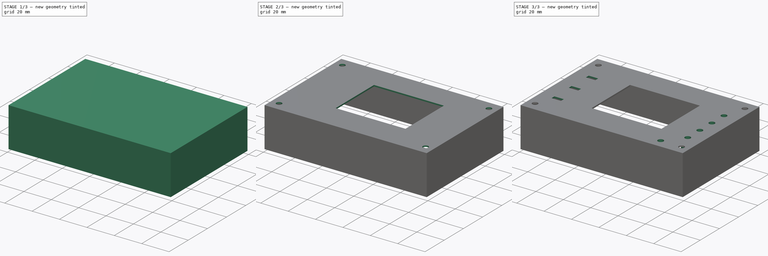
[diagram: build sequence overview — one tinted view per stage of 3, left to right]
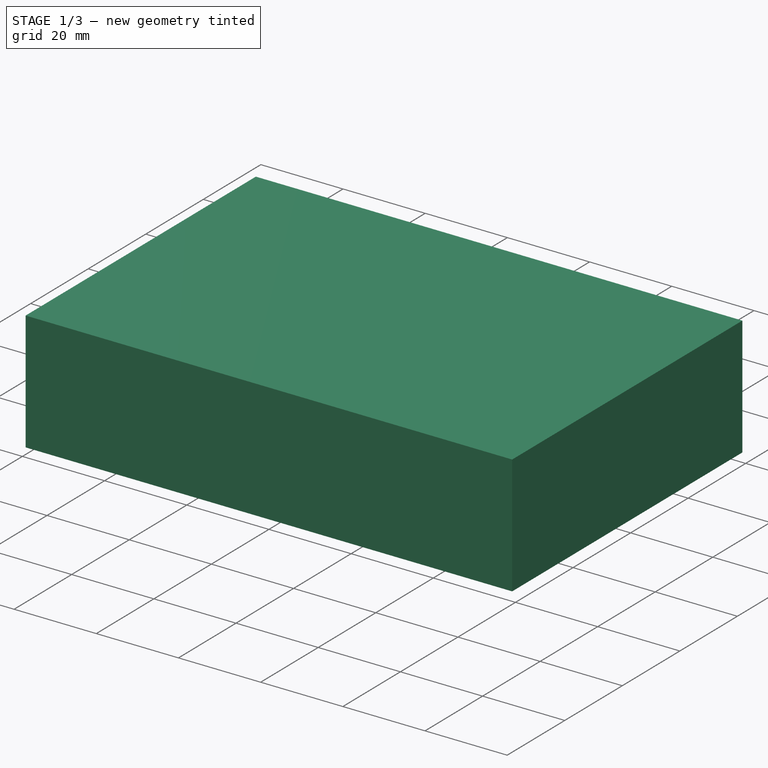
[diagram: stage 1 of 3 — iso view after this stage's code; geometry added in this stage tinted green]
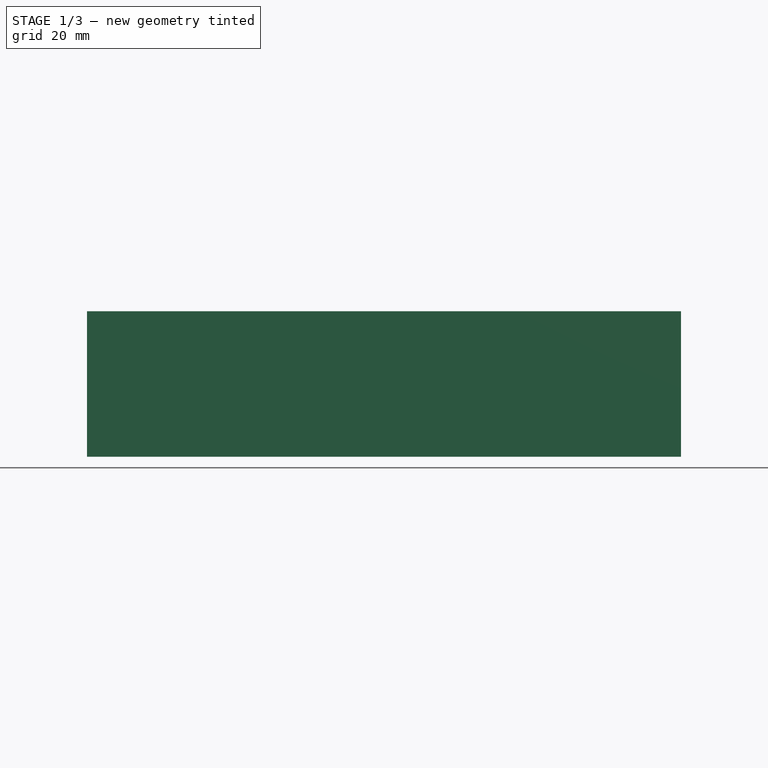
[diagram: stage 1 of 3 — front view after this stage's code; geometry added in this stage tinted green]
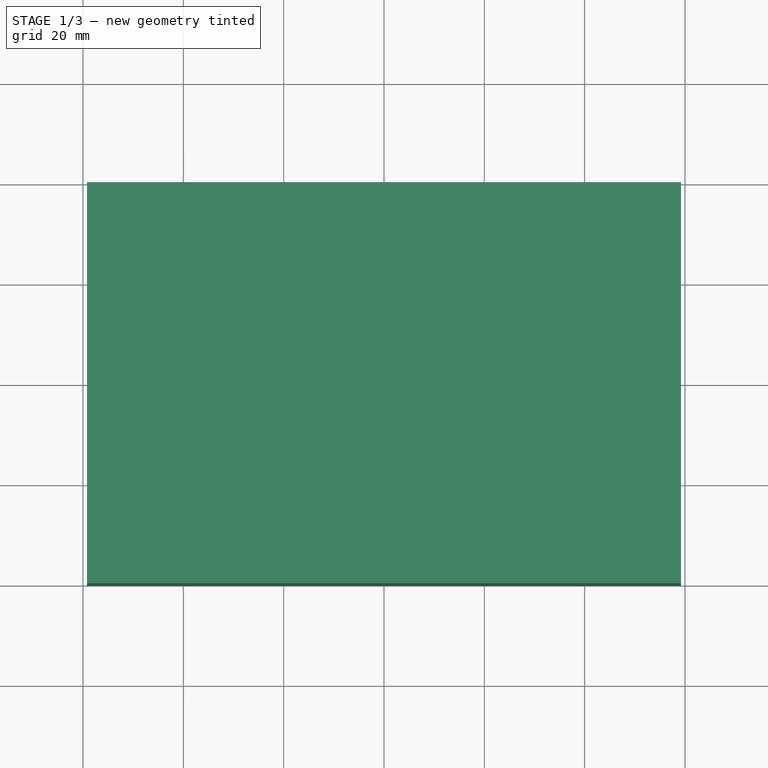
[diagram: stage 1 of 3 — top view after this stage's code; geometry added in this stage tinted green]
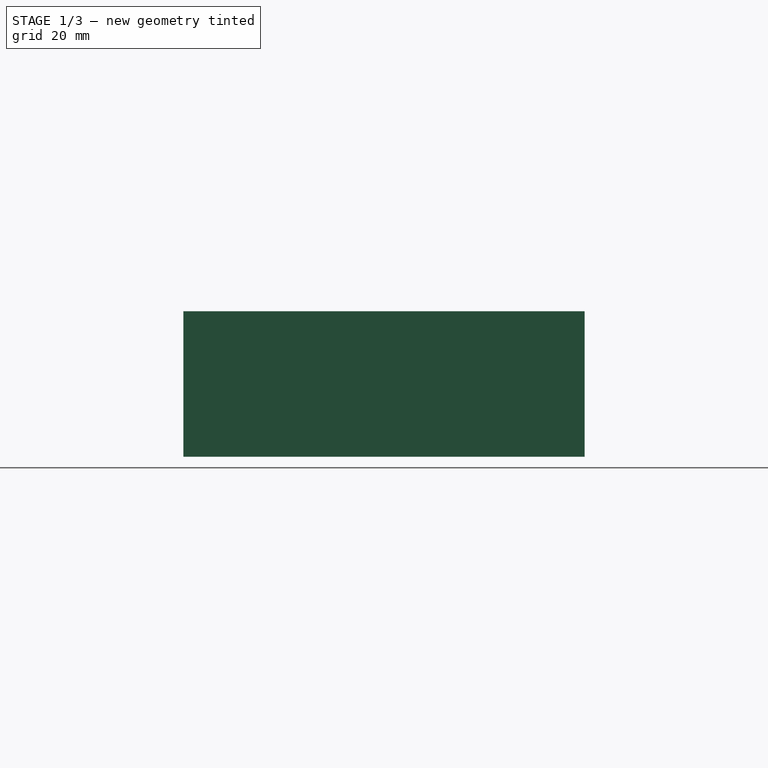
[diagram: stage 1 of 3 — right view after this stage's code; geometry added in this stage tinted green]
FCSTD DOCUMENT  (FreeCAD 0.20R29177 (Git))
Label: capotDSO138
License: All rights reserved
LicenseURL: http://en.wikipedia.org/wiki/All_rights_reserved
objects: Sketcher::SketchObject×5, PartDesign::Pocket×3, PartDesign::Pad×2, Spreadsheet::Sheet×1, PartDesign::Thickness×1, PartDesign::Plane×1, PartDesign::Body×1, App::Part×1
note: 19 computed .brp shape members not serialized (recipe doc carries the construction recipe); baked Part::Feature solids carry a one-line shape summary decoded from their .brp

FEATURE [Spreadsheet::Sheet] Spreadsheet  label="capotDSO138Sp"
  cells = A2=long; B2(long)==116.8 + jeu + paroisEp; A3=larg; B3(larg)=80; A4=haut; B4(haut)=29; A5=paroisEp; B5(paroisEp)=1; A6=jeu; B6(jeu)=0.6; A7=trousEcartlong; B7(trousEcartlong)=107; A8=trousEcartLarg; B8(trousEcartLarg)=66; A9=trousDiam; B9(trousDiam)=4; A10=ecranLong; B10(ecranLong)=51; A11=ecranLarg; B11(ecranLarg)=40; A12=ecranPosX; B12(ecranPosX)=31.5; C12=refVis bas gauche; A13=ecranPosY; B13(ecranPosY)=14; A15=glissieresPosX; B15(glissieresPosX)=7.2; A16=glissiere1posY; B16(glissiere1posY)=13.34; A17=glissiereEcart; B17(glissiereEcart)=17.9; A18=glissiere2posY; B18(glissiere2posY)==glissiere1posY + glissiereEcart; A19=glissiere3posY; B19(glissiere3posY)==glissiere1posY + glissiereEcart * 2; A20=glissieresLong; B20(glissieresLong)=12.8; A21=glissieresLarg; B21(glissieresLarg)=7; A22=glissieresLumLong; B22(glissieresLumLong)==6.3 + jeu; A23=glissieresLumLarg; B23(glissieresLumLarg)==2.35 + jeu; A25=bpsPosX; B25(bpsPosX)=102.5; A26=bp1PosY; B26(bp1PosY)=12.8; A27=bpsEcart; B27(bpsEcart)=12.6; A28=bp2PosY; B28(bp2PosY)==bp1PosY + bpsEcart; A29=bp3PosY; B29(bp3PosY)==bp1PosY + bpsEcart * 2; A30=bp4PosY; B30(bp4PosY)==bp1PosY + bpsEcart * 3; A31=bpTrouDiam; B31(bpTrouDiam)==3.5 + jeu; A32=bpResetPosX; B32(bpResetPosX)=91.7; A33=bpResetPosY; B33(bpResetPosY)=0; A34=bpTuyauHaut; B34(bpTuyauHaut)=12
FEATURE [Sketcher::SketchObject] Sketch
  FullyConstrained = true
  MapMode = 5
  Support = -> [XY_Plane001]
  expr: Constraints[10] = <<capotDSO138Sp>>.long
  expr: Constraints[11] = <<capotDSO138Sp>>.larg
  sketch-geometry (5):
    g0: LineSegment StartX=-59.2 StartY=40 StartZ=0 EndX=-59.2 EndY=-40 EndZ=0
    g1: LineSegment StartX=-59.2 StartY=-40 StartZ=0 EndX=59.2 EndY=-40 EndZ=0
    g2: LineSegment StartX=59.2 StartY=-40 StartZ=0 EndX=59.2 EndY=40 EndZ=0
    g3: LineSegment StartX=59.2 StartY=40 StartZ=0 EndX=-59.2 EndY=40 EndZ=0
    g4: GeomPoint X=0 Y=0 Z=0
  constraints (12):
    c: Coincident(g0,g1)
    c: Coincident(g1,g2)
    c: Coincident(g2,g3)
    c: Coincident(g3,g0)
    c: Horizontal(g1)
    c: Horizontal(g3)
    c: Vertical(g0)
    c: Vertical(g2)
    c: Symmetric(g1,g0,g4)
    c: Coincident(g4,g-1)
    c: DistanceX(g0,g2) = 118.4
    c: DistanceY(g1,g2) = 80
FEATURE [PartDesign::Pad] Pad
  Direction = (0,0,1)
  Length = 29
  Length2 = 10
  Profile = -> Sketch
  ReferenceAxis = -> Sketch [N_Axis]
  Type = 0
  expr: Length = <<capotDSO138Sp>>.haut
FEATURE [PartDesign::Thickness] Thickness
  Base = -> Pad [Face5]
  BaseFeature = -> Pad
  Intersection = false
  Join = 0
  Mode = 0
  Reversed = true
  SupportTransform = false
  Value = 1
  expr: Value = <<capotDSO138Sp>>.paroisEp
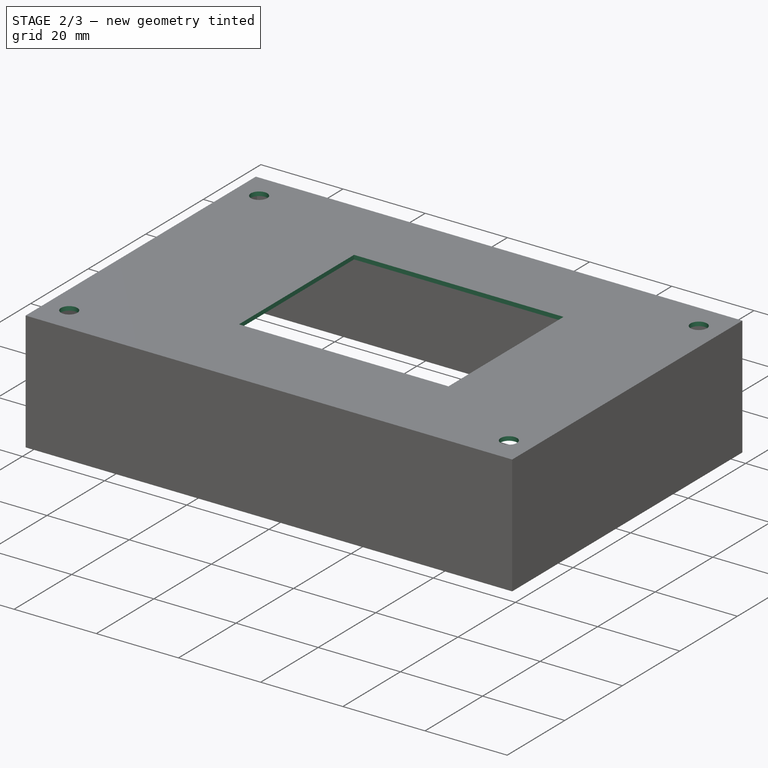
[diagram: stage 2 of 3 — iso view after this stage's code; geometry added in this stage tinted green]
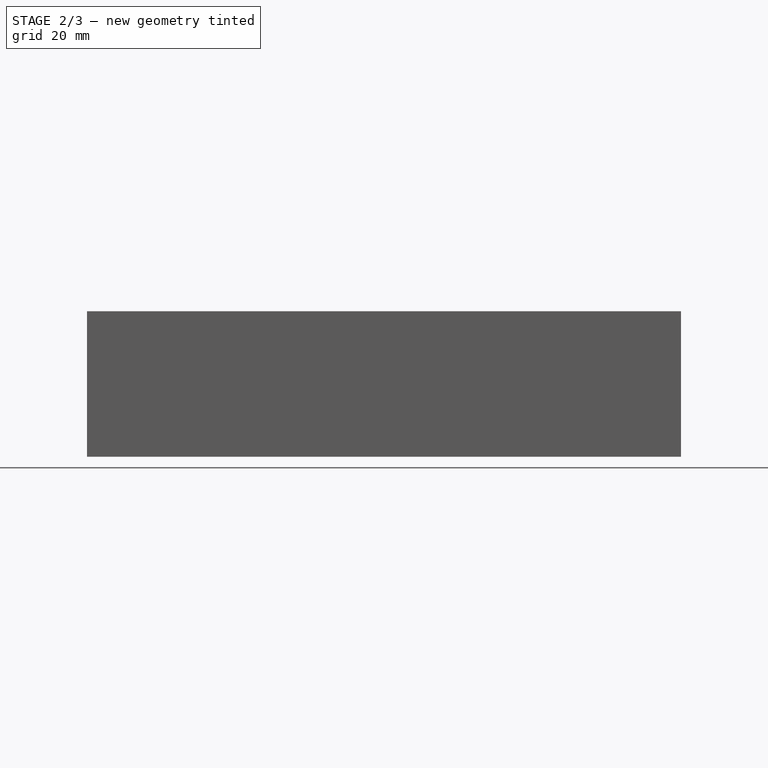
[diagram: stage 2 of 3 — front view after this stage's code; geometry added in this stage tinted green]
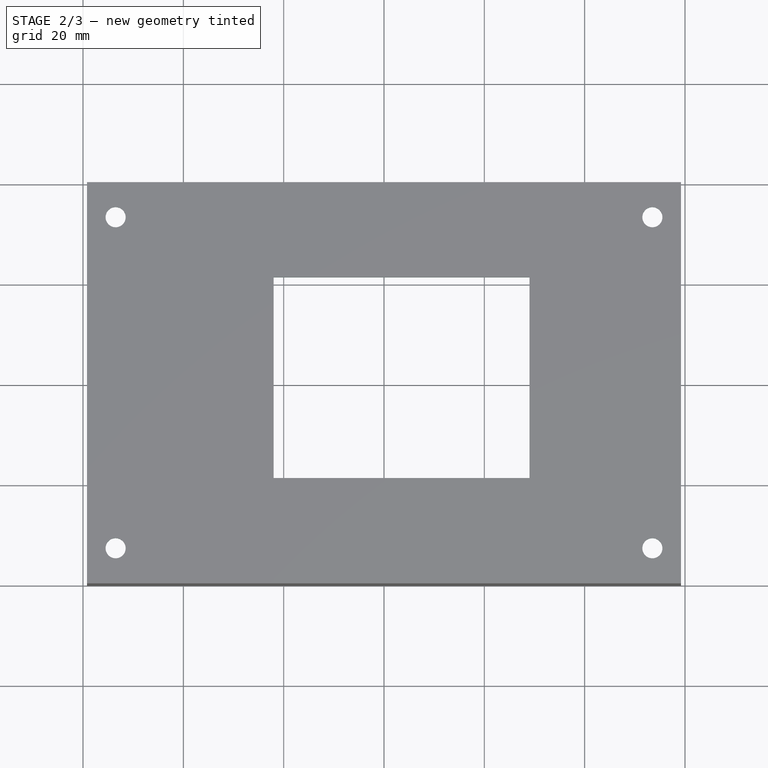
[diagram: stage 2 of 3 — top view after this stage's code; geometry added in this stage tinted green]
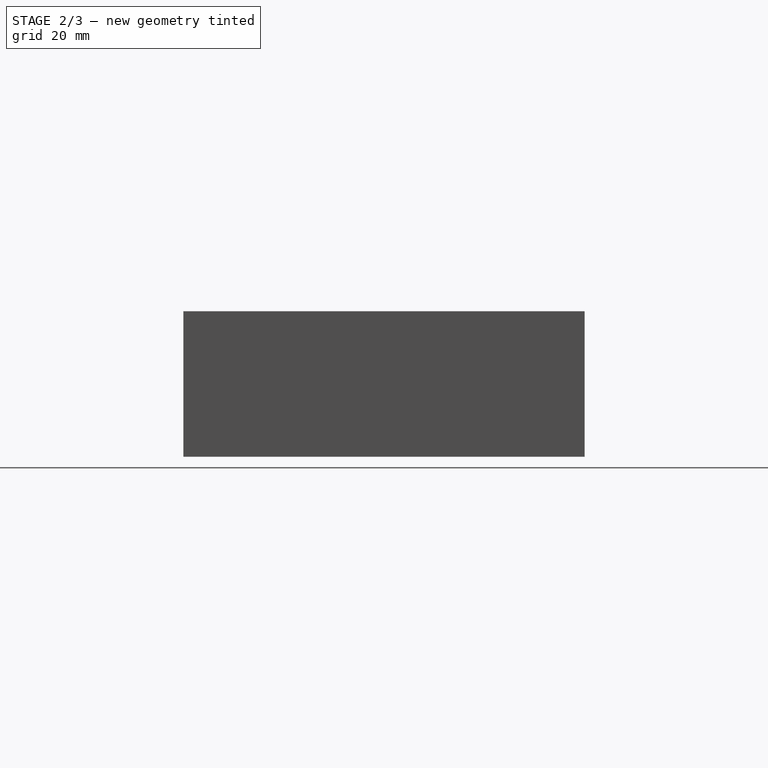
[diagram: stage 2 of 3 — right view after this stage's code; geometry added in this stage tinted green]
FEATURE [Sketcher::SketchObject] Sketch001
  FullyConstrained = true
  MapMode = 5
  Support = -> [XY_Plane001]
  expr: Constraints[10] = <<capotDSO138Sp>>.trousEcartlong
  expr: Constraints[11] = <<capotDSO138Sp>>.trousEcartLarg
  expr: Constraints[19] = <<capotDSO138Sp>>.trousDiam
  sketch-geometry (9):
    g0: LineSegment StartX=-53.5 StartY=33 StartZ=0 EndX=-53.5 EndY=-33 EndZ=0
    g1: LineSegment StartX=-53.5 StartY=-33 StartZ=0 EndX=53.5 EndY=-33 EndZ=0
    g2: LineSegment StartX=53.5 StartY=-33 StartZ=0 EndX=53.5 EndY=33 EndZ=0
    g3: LineSegment StartX=53.5 StartY=33 StartZ=0 EndX=-53.5 EndY=33 EndZ=0
    g4: GeomPoint X=0 Y=0 Z=0
    g5: Circle CenterX=53.5 CenterY=33 CenterZ=0 NormalX=0 NormalY=0 NormalZ=1 AngleXU=0 Radius=2
    g6: Circle CenterX=53.5 CenterY=-33 CenterZ=0 NormalX=0 NormalY=0 NormalZ=1 AngleXU=0 Radius=2
    g7: Circle CenterX=-53.5 CenterY=-33 CenterZ=0 NormalX=0 NormalY=0 NormalZ=1 AngleXU=0 Radius=2
    g8: Circle CenterX=-53.5 CenterY=33 CenterZ=0 NormalX=0 NormalY=0 NormalZ=1 AngleXU=0 Radius=2
  constraints (20):
    c: Coincident(g0,g1)
    c: Coincident(g1,g2)
    c: Coincident(g2,g3)
    c: Coincident(g3,g0)
    c: Horizontal(g1)
    c: Horizontal(g3)
    c: Vertical(g0)
    c: Vertical(g2)
    c: Symmetric(g1,g0,g4)
    c: Coincident(g4,g-1)
    c: DistanceX(g0,g2) = 107
    c: DistanceY(g1,g2) = 66
    c: Coincident(g5,g2)
    c: Coincident(g6,g1)
    c: Coincident(g7,g0)
    c: Coincident(g8,g0)
    c: Equal(g8,g5)
    c: Equal(g5,g6)
    c: Equal(g6,g7)
    c: Diameter(g5) = 4
FEATURE [PartDesign::Pocket] Pocket  label="trousFixation"
  BaseFeature = -> Thickness
  Direction = (0,0,-1)
  Length = 5
  Length2 = 5
  Profile = -> Sketch001
  ReferenceAxis = -> Sketch001 [N_Axis]
  Reversed = true
  Type = 1
FEATURE [Sketcher::SketchObject] Sketch002
  FullyConstrained = true
  MapMode = 5
  Support = -> [XY_Plane001]
  expr: Constraints[18] = <<capotDSO138Sp>>.trousEcartlong
  expr: Constraints[19] = <<capotDSO138Sp>>.trousEcartLarg
  expr: Constraints[20] = <<capotDSO138Sp>>.ecranPosX
  expr: Constraints[21] = <<capotDSO138Sp>>.ecranPosY
  expr: Constraints[22] = <<capotDSO138Sp>>.ecranLong
  expr: Constraints[23] = <<capotDSO138Sp>>.ecranLarg
  sketch-geometry (9):
    g0: LineSegment StartX=-53.5 StartY=33 StartZ=0 EndX=-53.5 EndY=-33 EndZ=0
    g1: LineSegment StartX=-53.5 StartY=-33 StartZ=0 EndX=53.5 EndY=-33 EndZ=0
    g2: LineSegment StartX=53.5 StartY=-33 StartZ=0 EndX=53.5 EndY=33 EndZ=0
    g3: LineSegment StartX=53.5 StartY=33 StartZ=0 EndX=-53.5 EndY=33 EndZ=0
    g4: GeomPoint X=0 Y=0 Z=0
    g5: LineSegment StartX=-22 StartY=-19 StartZ=0 EndX=29 EndY=-19 EndZ=0
    g6: LineSegment StartX=29 StartY=-19 StartZ=0 EndX=29 EndY=21 EndZ=0
    g7: LineSegment StartX=29 StartY=21 StartZ=0 EndX=-22 EndY=21 EndZ=0
    g8: LineSegment StartX=-22 StartY=21 StartZ=0 EndX=-22 EndY=-19 EndZ=0
  constraints (24):
    c: Coincident(g0,g1)
    c: Coincident(g1,g2)
    c: Coincident(g2,g3)
    c: Coincident(g3,g0)
    c: Horizontal(g1)
    c: Horizontal(g3)
    c: Vertical(g0)
    c: Vertical(g2)
    c: Symmetric(g1,g0,g4)
    c: Coincident(g4,g-1)
    c: Coincident(g5,g6)
    c: Coincident(g6,g7)
    c: Coincident(g7,g8)
    c: Coincident(g8,g5)
    c: Horizontal(g5)
    c: Horizontal(g7)
    c: Vertical(g6)
    c: Vertical(g8)
    c: DistanceX(g0,g2) = 107
    c: DistanceY(g1,g2) = 66
    c: DistanceX(g0,g5) = 31.5
    c: DistanceY(g0,g5) = 14
    c: DistanceX(g7,g6) = 51
    c: DistanceY(g5,g6) = 40
FEATURE [PartDesign::Pocket] Pocket001  label="trouEcran"
  BaseFeature = -> Pocket
  Direction = (0,0,-1)
  Length = 5
  Length2 = 5
  Profile = -> Sketch002
  ReferenceAxis = -> Sketch002 [N_Axis]
  Reversed = true
  Type = 1
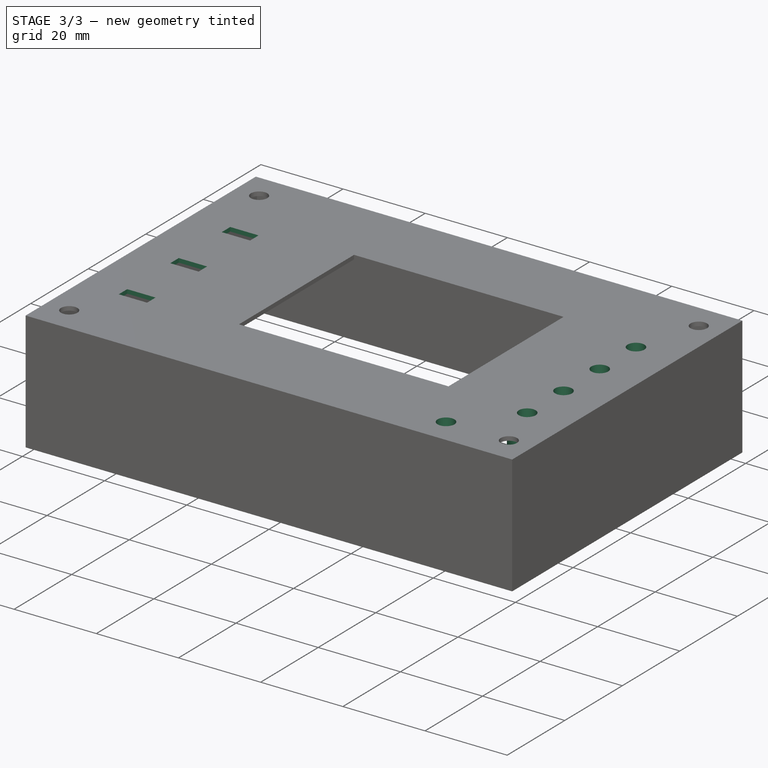
[diagram: stage 3 of 3 — iso view after this stage's code; geometry added in this stage tinted green]
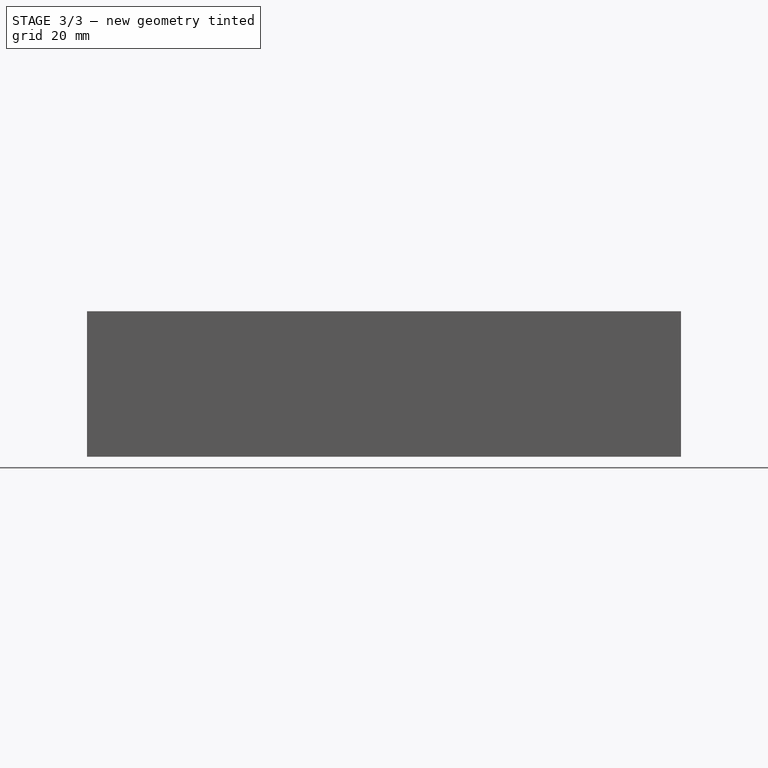
[diagram: stage 3 of 3 — front view after this stage's code; geometry added in this stage tinted green]
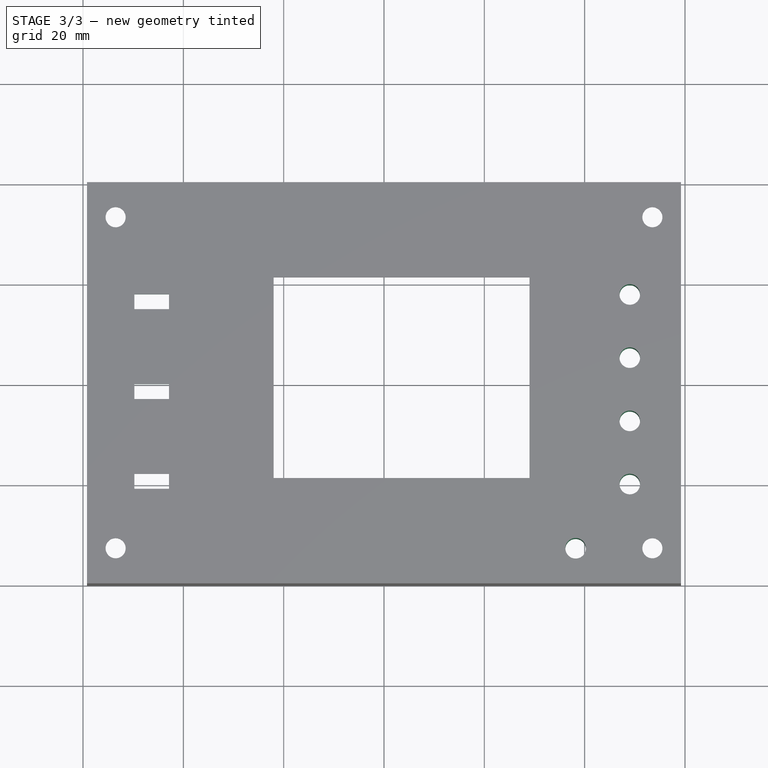
[diagram: stage 3 of 3 — top view after this stage's code; geometry added in this stage tinted green]
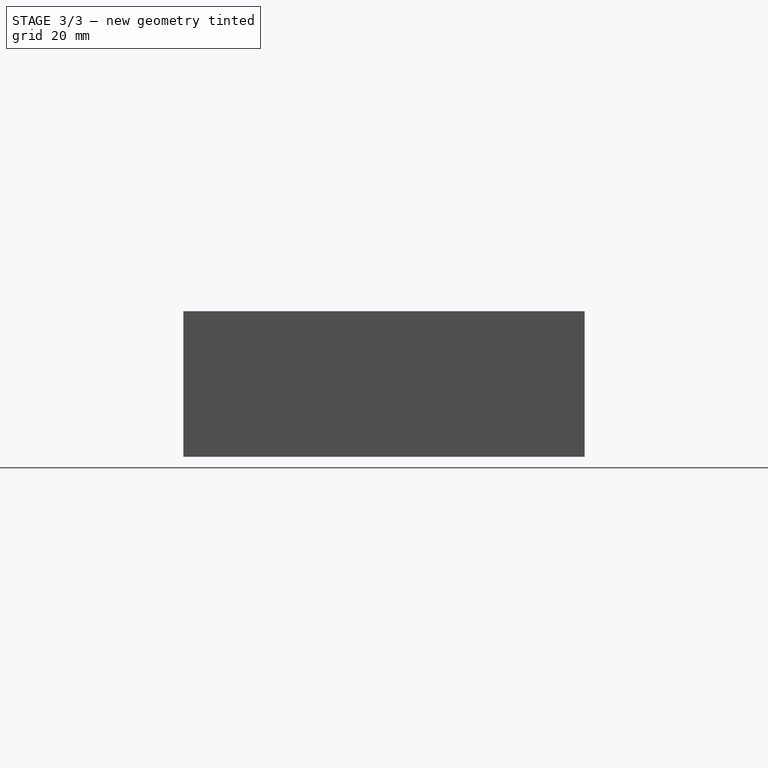
[diagram: stage 3 of 3 — right view after this stage's code; geometry added in this stage tinted green]
FEATURE [Sketcher::SketchObject] Sketch003  label="trousBpGlissSk"
  FullyConstrained = true
  MapMode = 5
  Support = -> [XY_Plane001]
  expr: Constraints[34] = <<capotDSO138Sp>>.trousEcartlong
  expr: Constraints[35] = <<capotDSO138Sp>>.trousEcartLarg
  expr: Constraints[50] = <<capotDSO138Sp>>.bpsEcart
  expr: Constraints[51] = <<capotDSO138Sp>>.bpTrouDiam
  expr: Constraints[54] = <<capotDSO138Sp>>.bpResetPosX
  expr: Constraints[55] = <<capotDSO138Sp>>.bpsPosX
  expr: Constraints[56] = <<capotDSO138Sp>>.bp1PosY
  expr: Constraints[61] = <<capotDSO138Sp>>.glissieresLumLong
  expr: Constraints[62] = <<capotDSO138Sp>>.glissieresLumLarg
  expr: Constraints[63] = <<capotDSO138Sp>>.glissieresPosX - <<capotDSO138Sp>>.glissieresLumLong / 2
  expr: Constraints[64] = <<capotDSO138Sp>>.glissiere1posY - <<capotDSO138Sp>>.glissieresLumLarg / 2
  expr: Constraints[72] = <<capotDSO138Sp>>.glissiereEcart - <<capotDSO138Sp>>.glissieresLumLarg
  sketch-geometry (27):
    g0: Circle CenterX=49 CenterY=17.6 CenterZ=0 NormalX=0 NormalY=0 NormalZ=1 AngleXU=0 Radius=2.05
    g1: Circle CenterX=49 CenterY=5 CenterZ=0 NormalX=0 NormalY=0 NormalZ=1 AngleXU=0 Radius=2.05
    g2: Circle CenterX=49 CenterY=-7.6 CenterZ=0 NormalX=0 NormalY=0 NormalZ=1 AngleXU=0 Radius=2.05
    g3: Circle CenterX=49 CenterY=-20.2 CenterZ=0 NormalX=0 NormalY=0 NormalZ=1 AngleXU=0 Radius=2.05
    g4: LineSegment StartX=-49.75 StartY=17.615 StartZ=0 EndX=-42.85 EndY=17.615 EndZ=0
    g5: LineSegment StartX=-42.85 StartY=17.615 StartZ=0 EndX=-42.85 EndY=14.665 EndZ=0
    g6: LineSegment StartX=-42.85 StartY=14.665 StartZ=0 EndX=-49.75 EndY=14.665 EndZ=0
    g7: LineSegment StartX=-49.75 StartY=14.665 StartZ=0 EndX=-49.75 EndY=17.615 EndZ=0
    g8: LineSegment StartX=-49.75 StartY=-3.235 StartZ=0 EndX=-42.85 EndY=-3.235 EndZ=0
    g9: LineSegment StartX=-42.85 StartY=-3.235 StartZ=0 EndX=-42.85 EndY=-0.285 EndZ=0
    g10: LineSegment StartX=-42.85 StartY=-0.285 StartZ=0 EndX=-49.75 EndY=-0.285 EndZ=0
    g11: LineSegment StartX=-49.75 StartY=-0.285 StartZ=0 EndX=-49.75 EndY=-3.235 EndZ=0
    g12: LineSegment StartX=-49.75 StartY=-18.185 StartZ=0 EndX=-42.85 EndY=-18.185 EndZ=0
    g13: LineSegment StartX=-42.85 StartY=-18.185 StartZ=0 EndX=-42.85 EndY=-21.135 EndZ=0
    g14: LineSegment StartX=-42.85 StartY=-21.135 StartZ=0 EndX=-49.75 EndY=-21.135 EndZ=0
    g15: LineSegment StartX=-49.75 StartY=-21.135 StartZ=0 EndX=-49.75 EndY=-18.185 EndZ=0
    g16: Circle CenterX=38.2 CenterY=-33 CenterZ=0 NormalX=0 NormalY=0 NormalZ=1 AngleXU=0 Radius=2.05
    g17: LineSegment StartX=53.5 StartY=-33 StartZ=0 EndX=53.5 EndY=33 EndZ=0
    g18: LineSegment StartX=53.5 StartY=33 StartZ=0 EndX=-53.5 EndY=33 EndZ=0
    g19: LineSegment StartX=-53.5 StartY=33 StartZ=0 EndX=-53.5 EndY=-33 EndZ=0
    g20: LineSegment StartX=-53.5 StartY=-33 StartZ=0 EndX=53.5 EndY=-33 EndZ=0
    g21: GeomPoint X=0 Y=0 Z=0
    g22: LineSegment StartX=49 StartY=-20.2 StartZ=0 EndX=49 EndY=-7.6 EndZ=0
    g23: LineSegment StartX=49 StartY=-7.6 StartZ=0 EndX=49 EndY=5 EndZ=0
    g24: LineSegment StartX=49 StartY=5 StartZ=0 EndX=49 EndY=17.6 EndZ=0
    g25: LineSegment StartX=-49.75 StartY=14.665 StartZ=0 EndX=-49.75 EndY=-0.285 EndZ=0
    g26: LineSegment StartX=-49.75 StartY=-18.185 StartZ=0 EndX=-49.75 EndY=-3.235 EndZ=0
  constraints (73):
    c: Coincident(g4,g5)
    c: Coincident(g5,g6)
    c: Coincident(g6,g7)
    c: Coincident(g7,g4)
    c: Horizontal(g4)
    c: Horizontal(g6)
    c: Vertical(g5)
    c: Vertical(g7)
    c: Coincident(g8,g9)
    c: Coincident(g9,g10)
    c: Coincident(g10,g11)
    c: Coincident(g11,g8)
    c: Horizontal(g8)
    c: Horizontal(g10)
    c: Vertical(g9)
    c: Vertical(g11)
    c: Coincident(g12,g13)
    c: Coincident(g13,g14)
    c: Coincident(g14,g15)
    c: Coincident(g15,g12)
    c: Horizontal(g12)
    c: Horizontal(g14)
    c: Vertical(g13)
    c: Vertical(g15)
    c: Coincident(g17,g18)
    c: Coincident(g18,g19)
    c: Coincident(g19,g20)
    c: Coincident(g20,g17)
    c: Horizontal(g18)
    c: Horizontal(g20)
    c: Vertical(g17)
    c: Vertical(g19)
    c: Symmetric(g18,g17,g21)
    c: Coincident(g21,g-1)
    c: DistanceX(g18,g17) = 107
    c: DistanceY(g17,g17) = 66
    c: PointOnObject(g16,g20)
    c: Equal(g0,g1)
    c: Equal(g1,g2)
    c: Equal(g2,g3)
    c: Equal(g3,g16)
    c: Coincident(g22,g3)
    c: Coincident(g22,g2)
    c: Vertical(g22)
    c: Coincident(g23,g2)
    c: Coincident(g23,g1)
    c: Coincident(g24,g1)
    c: Coincident(g24,g0)
    c: Vertical(g24)
    c: Vertical(g23)
    c: DistanceY(g22,g22) = 12.6
    c: Diameter(g3) = 4.1
    c: Equal(g22,g23)
    c: Equal(g23,g24)
    c: DistanceX(g19,g16) = 91.7
    c: DistanceX(g19,g3) = 102.5
    c: DistanceY(g19,g3) = 12.8
    c: Equal(g11,g15)
    c: Equal(g15,g7)
    c: Equal(g6,g10)
    c: Equal(g10,g12)
    c: DistanceX(g4,g4) = 6.9
    c: DistanceY(g5,g5) = 2.95
    c: DistanceX(g19,g14) = 3.75
    c: DistanceY(g19,g14) = 11.865
    c: Coincident(g25,g6)
    c: Coincident(g25,g10)
    c: Coincident(g26,g12)
    c: Coincident(g26,g8)
    c: Vertical(g26)
    c: Vertical(g25)
    c: Equal(g26,g25)
    c: DistanceY(g26,g26) = 14.95
FEATURE [PartDesign::Pocket] Pocket002
  BaseFeature = -> Pocket001
  Direction = (0,0,-1)
  Length = 5
  Length2 = 5
  Profile = -> Sketch003
  ReferenceAxis = -> Sketch003 [N_Axis]
  Reversed = true
  Type = 1
FEATURE [PartDesign::Plane] DatumPlane  label="planTrouVersInterieur"
  AttachmentOffset = pos=(0,0,28) rot=(0,0,1;0rad)
  Length = 137.865
  MapMode = 5
  Placement = pos=(0,0,28) rot=(0,0,1;0rad)
  ResizeMode = 0
  Support = -> [XY_Plane001]
  Width = 99.4648
  expr: .AttachmentOffset.Base.z = <<capotDSO138Sp>>.haut - <<capotDSO138Sp>>.paroisEp
FEATURE [Sketcher::SketchObject] Sketch004
  ExternalGeometry = -> [Sketch003]
  FullyConstrained = true
  MapMode = 5
  Placement = pos=(0,0,28) rot=(0,0,1;0rad)
  Support = -> [DatumPlane]
  expr: Constraints[11] = <<capotDSO138Sp>>.bpTrouDiam + 4
  expr: Constraints[9] = <<capotDSO138Sp>>.bpTrouDiam
  sketch-geometry (10):
    g0: Circle CenterX=49 CenterY=17.6 CenterZ=0 NormalX=0 NormalY=0 NormalZ=1 AngleXU=0 Radius=2.05
    g1: Circle CenterX=49 CenterY=5 CenterZ=0 NormalX=0 NormalY=0 NormalZ=1 AngleXU=0 Radius=2.05
    g2: Circle CenterX=49 CenterY=-7.6 CenterZ=0 NormalX=0 NormalY=0 NormalZ=1 AngleXU=0 Radius=2.05
    g3: Circle CenterX=49 CenterY=-20.2 CenterZ=0 NormalX=0 NormalY=0 NormalZ=1 AngleXU=0 Radius=2.05
    g4: Circle CenterX=38.2 CenterY=-33 CenterZ=0 NormalX=0 NormalY=0 NormalZ=1 AngleXU=0 Radius=2.05
    g5: Circle CenterX=49 CenterY=17.6 CenterZ=0 NormalX=0 NormalY=0 NormalZ=1 AngleXU=0 Radius=4.05
    g6: Circle CenterX=49 CenterY=5 CenterZ=0 NormalX=0 NormalY=0 NormalZ=1 AngleXU=0 Radius=4.05
    g7: Circle CenterX=49 CenterY=-7.6 CenterZ=0 NormalX=0 NormalY=0 NormalZ=1 AngleXU=0 Radius=4.05
    g8: Circle CenterX=49 CenterY=-20.2 CenterZ=0 NormalX=0 NormalY=0 NormalZ=1 AngleXU=0 Radius=4.05
    g9: Circle CenterX=38.2 CenterY=-33 CenterZ=0 NormalX=0 NormalY=0 NormalZ=1 AngleXU=0 Radius=4.05
  constraints (20):
    c: Coincident(g0,g-3)
    c: Coincident(g1,g-4)
    c: Coincident(g2,g-5)
    c: Coincident(g3,g-6)
    c: Coincident(g4,g-7)
    c: Equal(g0,g1)
    c: Equal(g1,g2)
    c: Equal(g2,g3)
    c: Equal(g3,g4)
    c: Diameter(g0) = 4.1
    c: Coincident(g5,g0)
    c: Diameter(g5) = 8.1
    c: Coincident(g6,g1)
    c: Coincident(g7,g2)
    c: Coincident(g8,g3)
    c: Coincident(g9,g4)
    c: Equal(g9,g8)
    c: Equal(g8,g7)
    c: Equal(g7,g6)
    c: Equal(g6,g5)
FEATURE [PartDesign::Pad] Pad001  label="bpTuyau"
  BaseFeature = -> Pocket002
  Direction = (0,0,1)
  Length = 12
  Length2 = 10
  Profile = -> Sketch004
  ReferenceAxis = -> Sketch004 [N_Axis]
  Reversed = true
  Type = 0
  expr: Length = <<capotDSO138Sp>>.bpTuyauHaut
FEATURE [PartDesign::Body] Body  label="capotDSO138Bdy"
  Group = -> [Sketch,Pad,Thickness,Sketch001,Pocket,Sketch002,Pocket001,Sketch003,Pocket002,DatumPlane,Sketch004,Pad001]
  Origin = -> Origin001
  Tip = -> Pad001
FEATURE [App::Part] Part  label="capotDSO138Prt"
  Group = -> [Body]
  Origin = -> Origin
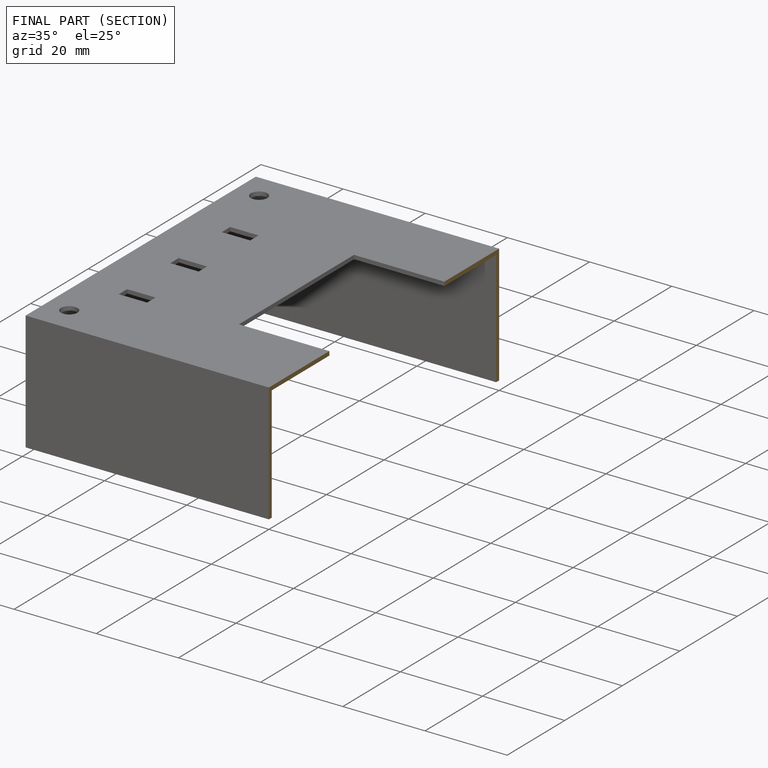
[diagram: finished part — half-section view (interior)]
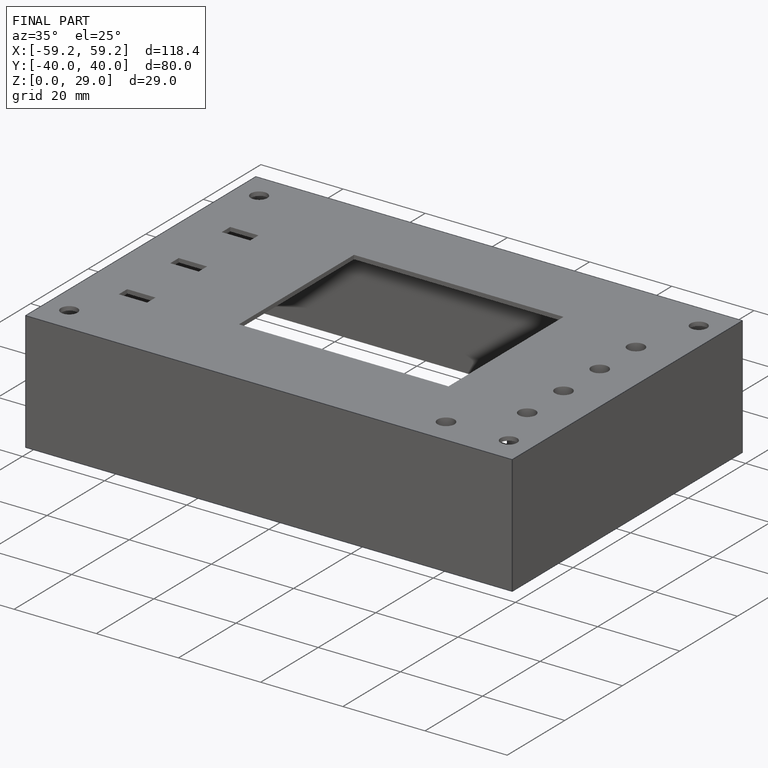
[diagram: finished part — iso view with bounding-box wireframe]
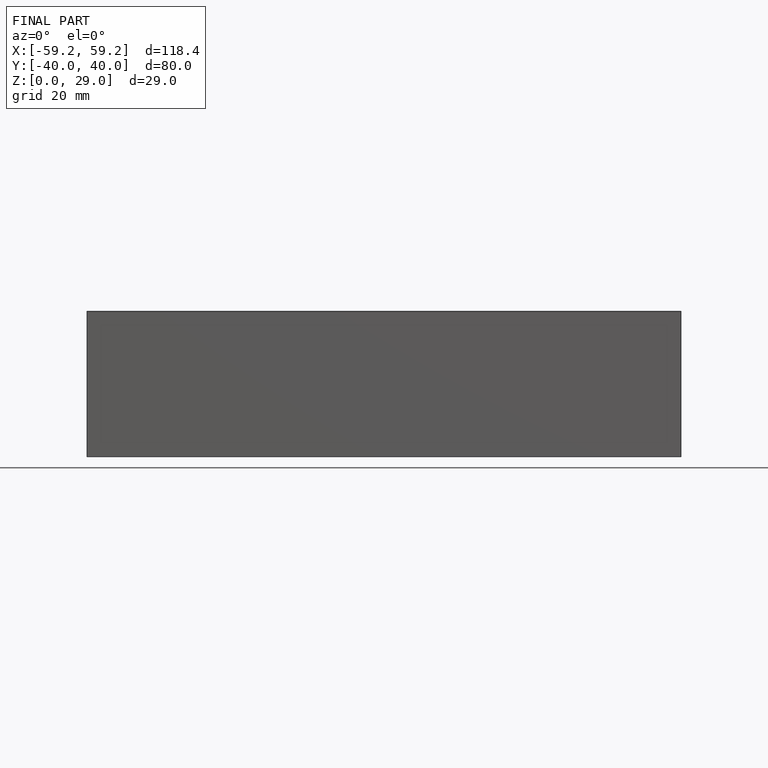
[diagram: finished part — front view with bounding-box wireframe]
